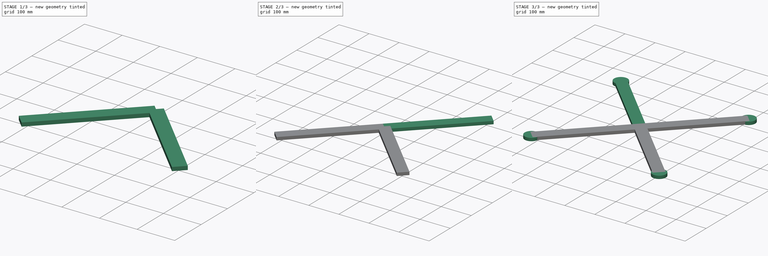
[diagram: build sequence overview — one tinted view per stage of 3, left to right]
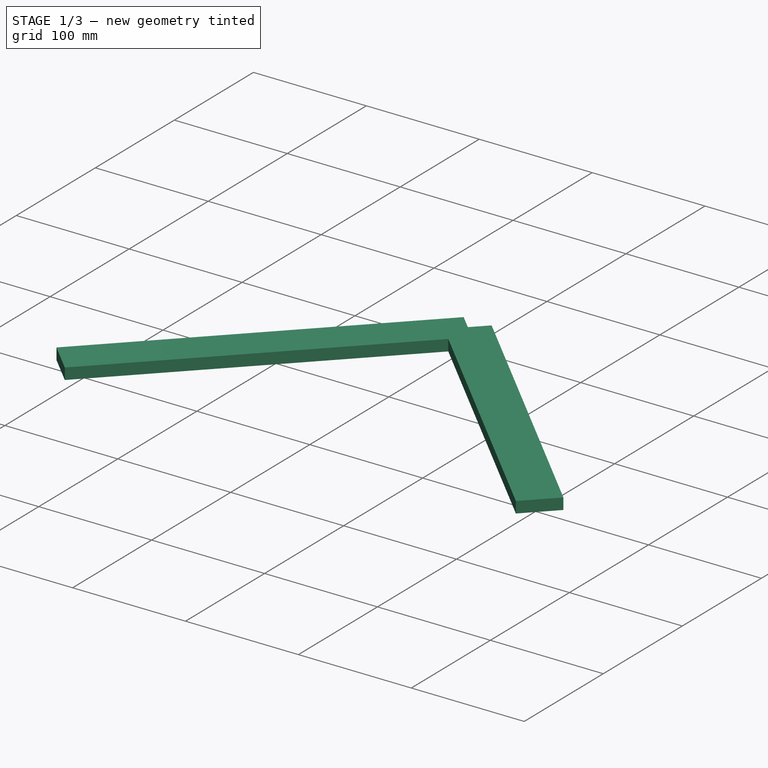
[diagram: stage 1 of 3 — iso view after this stage's code; geometry added in this stage tinted green]
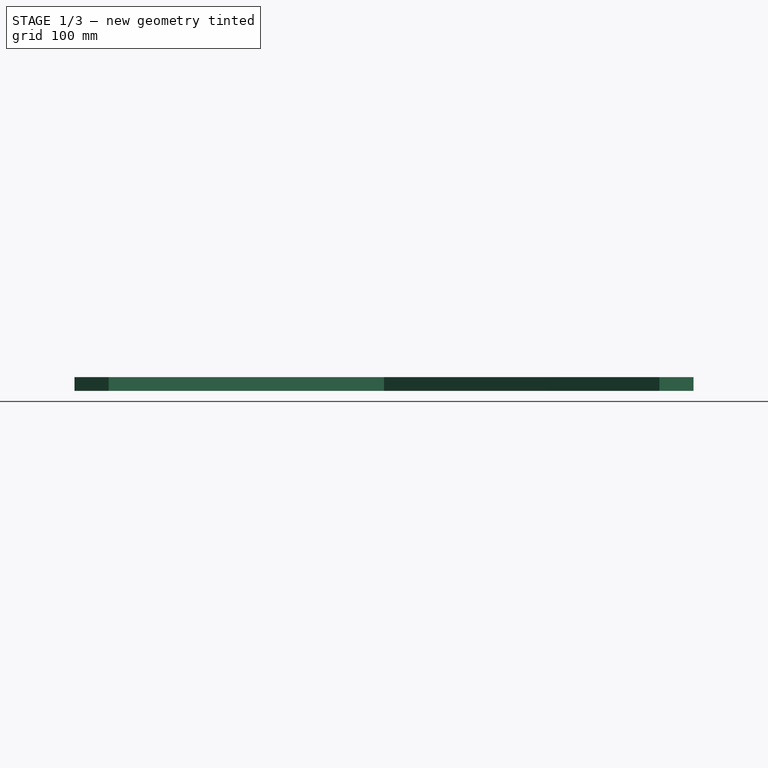
[diagram: stage 1 of 3 — front view after this stage's code; geometry added in this stage tinted green]
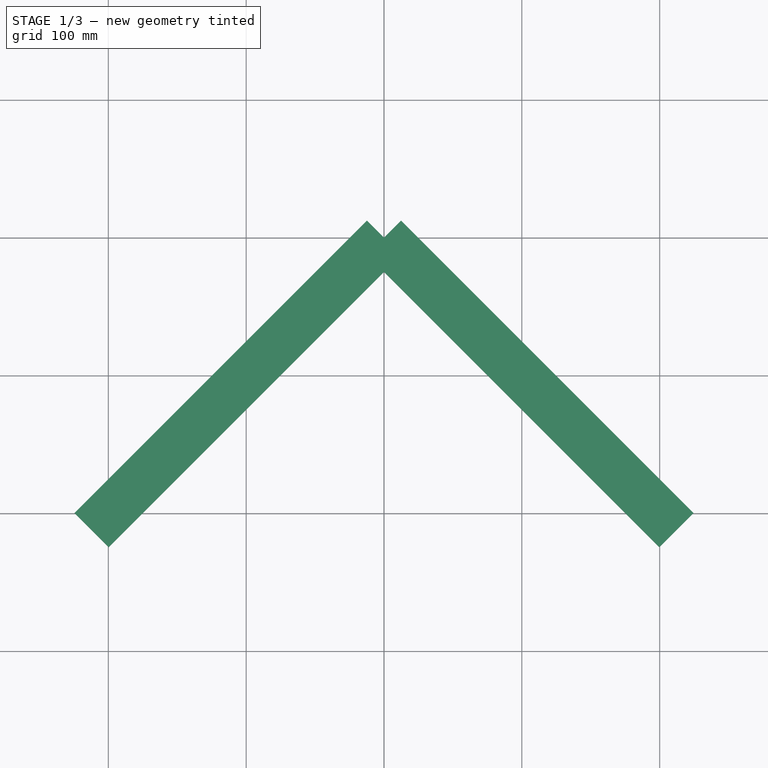
[diagram: stage 1 of 3 — top view after this stage's code; geometry added in this stage tinted green]
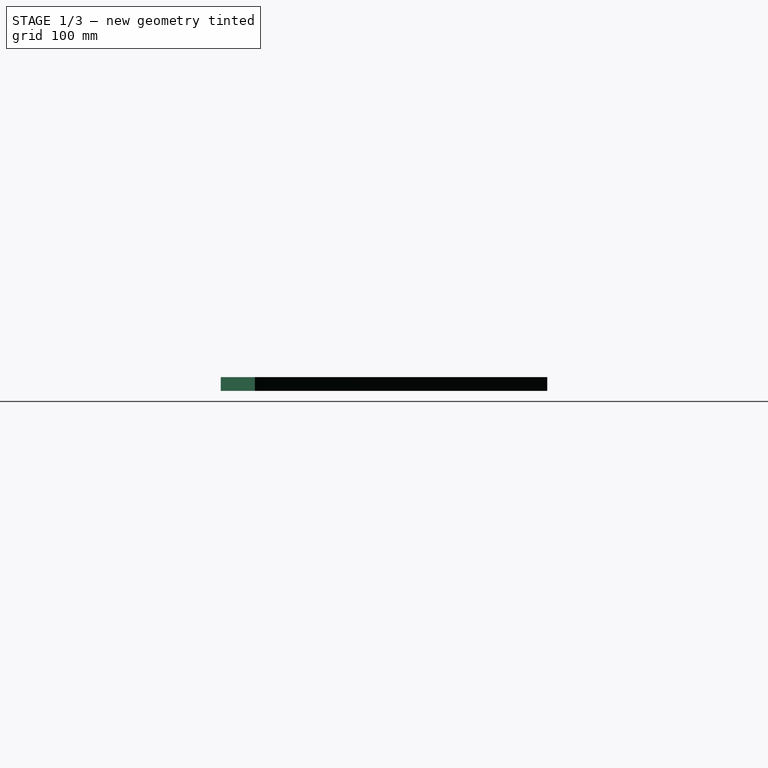
[diagram: stage 1 of 3 — right view after this stage's code; geometry added in this stage tinted green]
FCSTD DOCUMENT  (FreeCAD 0.20R29603 (Git))
Label: final_quadcopter_2
License: All rights reserved
LicenseURL: http://en.wikipedia.org/wiki/All_rights_reserved
objects: Sketcher::SketchObject×9, PartDesign::Pad×5, Spreadsheet::Sheet×1, PartDesign::Body×1
note: 20 computed .brp shape members not serialized (recipe doc carries the construction recipe); baked Part::Feature solids carry a one-line shape summary decoded from their .brp

FEATURE [Sketcher::SketchObject] Sketch  label="top_base"
  FullyConstrained = true
  expr: .Constraints.frame_length = Spreadsheet.A2
  expr: .Constraints.frame_width = Spreadsheet.B2
  sketch-geometry (10):
    g0: ArcOfCircle CenterX=-75 CenterY=75 CenterZ=0 NormalX=0 NormalY=0 NormalZ=1 AngleXU=0 Radius=15 StartAngle=1.5708 EndAngle=3.14159
    g1: LineSegment StartX=-75 StartY=90 StartZ=0 EndX=75 EndY=90 EndZ=0
    g2: ArcOfCircle CenterX=75 CenterY=75 CenterZ=0 NormalX=0 NormalY=0 NormalZ=1 AngleXU=0 Radius=15 StartAngle=2e-16 EndAngle=1.5708
    g3: LineSegment StartX=90 StartY=75 StartZ=0 EndX=90 EndY=-75 EndZ=0
    g4: ArcOfCircle CenterX=75 CenterY=-75 CenterZ=0 NormalX=0 NormalY=0 NormalZ=1 AngleXU=0 Radius=15 StartAngle=4.71239 EndAngle=6.28319
    g5: LineSegment StartX=75 StartY=-90 StartZ=0 EndX=-75 EndY=-90 EndZ=0
    g6: ArcOfCircle CenterX=-75 CenterY=-75 CenterZ=0 NormalX=0 NormalY=0 NormalZ=1 AngleXU=0 Radius=15 StartAngle=3.14159 EndAngle=4.71239
    g7: LineSegment StartX=-90 StartY=-75 StartZ=0 EndX=-90 EndY=75 EndZ=0
    g8: GeomPoint X=-90 Y=90 Z=0
    g9: GeomPoint X=90 Y=-90 Z=0
  constraints (22):
    c: Tangent(g0,g1) = 1.5708
    c: Tangent(g1,g2) = 1.5708
    c: Tangent(g2,g3) = 1.5708
    c: Tangent(g3,g4) = 1.5708
    c: Tangent(g4,g5) = 1.5708
    c: Tangent(g5,g6) = 1.5708
    c: Tangent(g6,g7) = 1.5708
    c: Tangent(g7,g0) = 1.5708
    c: Horizontal(g1)
    c: Horizontal(g5)
    c: Vertical(g3)
    c: Vertical(g7)
    c: Equal(g2,g4)
    c: PointOnObject(g8,g1)
    c: PointOnObject(g8,g7)
    c: PointOnObject(g9,g3)
    c: PointOnObject(g9,g5)
    c: Distance(g7) = 150  'frame_length'
    c: Distance(g1) = 150  'frame_width'
    c: Radius(g2) = 15
    c: Symmetric(g0,g6,g-1)
    c: Symmetric(g0,g2,g-2)
FEATURE [Sketcher::SketchObject] Sketch001  label="arm1"
  FullyConstrained = true
  MapMode = 5
  Placement = pos=(0,0,5) rot=(0,0,1;0rad)
  expr: .Constraints.arm_length = Spreadsheet.C2
  expr: .Constraints.arm_width = Spreadsheet.D2
  sketch-geometry (4):
    g0: LineSegment StartX=12.3744 StartY=-12.3744 StartZ=0 EndX=224.506 EndY=199.758 EndZ=0
    g1: LineSegment StartX=224.506 StartY=199.758 StartZ=0 EndX=199.758 EndY=224.506 EndZ=0
    g2: LineSegment StartX=199.758 StartY=224.506 StartZ=0 EndX=-12.3744 EndY=12.3744 EndZ=0
    g3: LineSegment StartX=-12.3744 StartY=12.3744 StartZ=0 EndX=12.3744 EndY=-12.3744 EndZ=0
  constraints (11):
    c: Coincident(g0,g1)
    c: Coincident(g1,g2)
    c: Coincident(g2,g3)
    c: Coincident(g3,g0)
    c: Equal(g1,g3)
    c: Equal(g2,g0)
    c: Perpendicular(g1,g0)
    c: Distance(g0) = 300  'arm_length'
    c: Distance(g1) = 35  'arm_width'
    c: Angle(g-1,g0) = 0.785398
    c: Symmetric(g2,g0,g-1)
FEATURE [Spreadsheet::Sheet] Spreadsheet
  cells = A1=Frame Length; B1=Frame Width; C1=Arm Length; D1=Arm Width; E1=Motor Outer Diameter; F1=Motor Actual Diameter; G1=Motor Srew Diameter; H1=Screw Distance 1; I1=Screw Distance 2; J1=Drone Frame Hieght; K1=Base Thickness; L1=Battery Length; M1=Bettery Width; N1=Battery Height; O1=Battery Edge Radius; P1=Battery Thickness; Q1=Battery Clearance Height; R1=Guard Height; S1=Rotor Diameter; T1=Guard Radius; U1=Landing Base Diameter; V1=Landing Base Height; W1=Switch Terminal Thickness Radius; X1= Switch Terminal Distance; Y1=Switch Terminal Length; A2=150; B2=150; C2=300; D2=35; E2=45; F2=28; G2=2; H2=16; I2=19; J2=100; K2=5; L2=105; M2=35; N2=30; O2=2; P2=5; Q2=5; R2=20; S2=100; T2=100; U2=10; V2=100; W2=2; X2=15; Y2=10; F3=Motor Clearance Depth; F4=2
FEATURE [Sketcher::SketchObject] Sketch003  label="arm002"
  FullyConstrained = true
  MapMode = 5
  Placement = pos=(0,0,5) rot=(0,0,1;1.5708rad)
  expr: .Constraints.arm_length = Spreadsheet.C2
  expr: .Constraints.arm_width = Spreadsheet.D2
  sketch-geometry (4):
    g0: LineSegment StartX=12.3744 StartY=-12.3744 StartZ=0 EndX=224.506 EndY=199.758 EndZ=0
    g1: LineSegment StartX=224.506 StartY=199.758 StartZ=0 EndX=199.758 EndY=224.506 EndZ=0
    g2: LineSegment StartX=199.758 StartY=224.506 StartZ=0 EndX=-12.3744 EndY=12.3744 EndZ=0
    g3: LineSegment StartX=-12.3744 StartY=12.3744 StartZ=0 EndX=12.3744 EndY=-12.3744 EndZ=0
  constraints (11):
    c: Coincident(g0,g1)
    c: Coincident(g1,g2)
    c: Coincident(g2,g3)
    c: Coincident(g3,g0)
    c: Equal(g1,g3)
    c: Equal(g2,g0)
    c: Perpendicular(g1,g0)
    c: Distance(g0) = 300  'arm_length'
    c: Distance(g1) = 35  'arm_width'
    c: Angle(g-1,g0) = 0.785398
    c: Symmetric(g2,g0,g-1)
FEATURE [Sketcher::SketchObject] Sketch004  label="arm003"
  FullyConstrained = true
  MapMode = 5
  Placement = pos=(0,0,5) rot=(0,0,1;3.14159rad)
  expr: .Constraints.arm_length = Spreadsheet.C2
  expr: .Constraints.arm_width = Spreadsheet.D2
  sketch-geometry (4):
    g0: LineSegment StartX=12.3744 StartY=-12.3744 StartZ=0 EndX=224.506 EndY=199.758 EndZ=0
    g1: LineSegment StartX=224.506 StartY=199.758 StartZ=0 EndX=199.758 EndY=224.506 EndZ=0
    g2: LineSegment StartX=199.758 StartY=224.506 StartZ=0 EndX=-12.3744 EndY=12.3744 EndZ=0
    g3: LineSegment StartX=-12.3744 StartY=12.3744 StartZ=0 EndX=12.3744 EndY=-12.3744 EndZ=0
  constraints (11):
    c: Coincident(g0,g1)
    c: Coincident(g1,g2)
    c: Coincident(g2,g3)
    c: Coincident(g3,g0)
    c: Equal(g1,g3)
    c: Equal(g2,g0)
    c: Perpendicular(g1,g0)
    c: Distance(g0) = 300  'arm_length'
    c: Distance(g1) = 35  'arm_width'
    c: Angle(g-1,g0) = 0.785398
    c: Symmetric(g2,g0,g-1)
FEATURE [Sketcher::SketchObject] Sketch005  label="arm004"
  FullyConstrained = true
  MapMode = 5
  Placement = pos=(0,0,5) rot=(0,0,-1;1.5708rad)
  expr: .Constraints.arm_length = Spreadsheet.C2
  expr: .Constraints.arm_width = Spreadsheet.D2
  sketch-geometry (4):
    g0: LineSegment StartX=12.3744 StartY=-12.3744 StartZ=0 EndX=224.506 EndY=199.758 EndZ=0
    g1: LineSegment StartX=224.506 StartY=199.758 StartZ=0 EndX=199.758 EndY=224.506 EndZ=0
    g2: LineSegment StartX=199.758 StartY=224.506 StartZ=0 EndX=-12.3744 EndY=12.3744 EndZ=0
    g3: LineSegment StartX=-12.3744 StartY=12.3744 StartZ=0 EndX=12.3744 EndY=-12.3744 EndZ=0
  constraints (11):
    c: Coincident(g0,g1)
    c: Coincident(g1,g2)
    c: Coincident(g2,g3)
    c: Coincident(g3,g0)
    c: Equal(g1,g3)
    c: Equal(g2,g0)
    c: Perpendicular(g1,g0)
    c: Distance(g0) = 300  'arm_length'
    c: Distance(g1) = 35  'arm_width'
    c: Angle(g-1,g0) = 0.785398
    c: Symmetric(g2,g0,g-1)
FEATURE [Sketcher::SketchObject] Sketch002  label="outer_motor_base"
  ExternalGeometry = -> [Sketch001,Sketch003,Sketch004,Sketch005]
  FullyConstrained = true
  MapMode = 5
  Placement = pos=(0,0,5) rot=(0,0,1;0rad)
  expr: .Constraints.motor_outer_diameter = Spreadsheet.E2
  sketch-geometry (4):
    g0: Circle CenterX=212.132 CenterY=212.132 CenterZ=0 NormalX=0 NormalY=0 NormalZ=1 AngleXU=0 Radius=22.5
    g1: Circle CenterX=212.132 CenterY=-212.132 CenterZ=0 NormalX=0 NormalY=0 NormalZ=1 AngleXU=0 Radius=22.5
    g2: Circle CenterX=-212.132 CenterY=-212.132 CenterZ=0 NormalX=0 NormalY=0 NormalZ=1 AngleXU=0 Radius=22.5
    g3: Circle CenterX=-212.132 CenterY=212.132 CenterZ=0 NormalX=0 NormalY=0 NormalZ=1 AngleXU=0 Radius=22.5
  constraints (8):
    c: Diameter(g0) = 45  'motor_outer_diameter'
    c: Symmetric(g-3,g-4,g0)
    c: Equal(g0,g3)
    c: Equal(g3,g2)
    c: Equal(g2,g1)
    c: Symmetric(g-10,g-9,g1)
    c: Symmetric(g-7,g-8,g2)
    c: Symmetric(g-5,g-6,g3)
FEATURE [Sketcher::SketchObject] Sketch006  label="screw_holes"
  ExternalGeometry = -> [Sketch002]
  FullyConstrained = true
  MapMode = 5
  Support = -> [XY_Plane]
  expr: Constraints[13] = Spreadsheet.G2
  expr: Constraints[18] = Spreadsheet.H2
  expr: Constraints[19] = Spreadsheet.I2
  expr: Constraints[25] = Spreadsheet.G2
  expr: Constraints[28] = Spreadsheet.I2
  expr: Constraints[29] = Spreadsheet.H2
  expr: Constraints[32] = Spreadsheet.H2
  expr: Constraints[38] = Spreadsheet.I2
  expr: Constraints[39] = Spreadsheet.G2
  expr: Constraints[3] = Spreadsheet.G2
  expr: Constraints[7] = Spreadsheet.H2
  expr: Constraints[9] = Spreadsheet.I2
  sketch-geometry (16):
    g0: Circle CenterX=-220.132 CenterY=212.132 CenterZ=0 NormalX=0 NormalY=0 NormalZ=1 AngleXU=0 Radius=1
    g1: Circle CenterX=-212.132 CenterY=221.632 CenterZ=0 NormalX=0 NormalY=0 NormalZ=1 AngleXU=0 Radius=1
    g2: Circle CenterX=-204.132 CenterY=212.132 CenterZ=0 NormalX=0 NormalY=0 NormalZ=1 AngleXU=0 Radius=1
    g3: Circle CenterX=-212.132 CenterY=202.632 CenterZ=0 NormalX=0 NormalY=0 NormalZ=1 AngleXU=0 Radius=1
    g4: Circle CenterX=212.132 CenterY=221.632 CenterZ=0 NormalX=0 NormalY=0 NormalZ=1 AngleXU=0 Radius=1
    g5: Circle CenterX=220.132 CenterY=212.132 CenterZ=0 NormalX=0 NormalY=0 NormalZ=1 AngleXU=0 Radius=1
    g6: Circle CenterX=204.132 CenterY=212.132 CenterZ=0 NormalX=0 NormalY=0 NormalZ=1 AngleXU=0 Radius=1
    g7: Circle CenterX=212.132 CenterY=202.632 CenterZ=0 NormalX=0 NormalY=0 NormalZ=1 AngleXU=0 Radius=1
    g8: Circle CenterX=-220.132 CenterY=-212.132 CenterZ=0 NormalX=0 NormalY=0 NormalZ=1 AngleXU=0 Radius=1
    g9: Circle CenterX=-212.132 CenterY=-221.632 CenterZ=0 NormalX=0 NormalY=0 NormalZ=1 AngleXU=0 Radius=1
    g10: Circle CenterX=-212.132 CenterY=-202.632 CenterZ=0 NormalX=0 NormalY=0 NormalZ=1 AngleXU=0 Radius=1
    g11: Circle CenterX=-204.132 CenterY=-212.132 CenterZ=0 NormalX=0 NormalY=0 NormalZ=1 AngleXU=0 Radius=1
    g12: Circle CenterX=212.132 CenterY=-204.132 CenterZ=0 NormalX=0 NormalY=0 NormalZ=1 AngleXU=0 Radius=1
    g13: Circle CenterX=221.632 CenterY=-212.132 CenterZ=0 NormalX=0 NormalY=0 NormalZ=1 AngleXU=0 Radius=1
    g14: Circle CenterX=202.632 CenterY=-212.132 CenterZ=0 NormalX=0 NormalY=0 NormalZ=1 AngleXU=0 Radius=1
    g15: Circle CenterX=212.132 CenterY=-220.132 CenterZ=0 NormalX=0 NormalY=0 NormalZ=1 AngleXU=0 Radius=1
  constraints (40):
    c: Equal(g0,g1)
    c: Equal(g1,g2)
    c: Equal(g2,g3)
    c: Diameter(g2) = 2
    c: Symmetric(g3,g1,g-3)
    c: Symmetric(g0,g2,g-3)
    c: Horizontal(g0,g2)
    c: DistanceX(g0,g2) = 16
    c: Vertical(g1,g3)
    c: DistanceY(g3,g1) = 19
    c: Equal(g6,g4)
    c: Equal(g4,g5)
    c: Equal(g5,g7)
    c: Diameter(g5) = 2
    c: Vertical(g7,g4)
    c: Symmetric(g7,g4,g-4)
    c: Horizontal(g5,g6)
    c: Symmetric(g5,g6,g-4)
    c: DistanceX(g6,g5) = 16
    c: DistanceY(g7,g4) = 19
    c: Equal(g8,g10)
    c: Equal(g10,g11)
    c: Equal(g11,g9)
    c: Symmetric(g10,g9,g-6)
    c: Symmetric(g11,g8,g-6)
    c: Diameter(g11) = 2
    c: Vertical(g10,g9)
    c: Horizontal(g11,g8)
    c: DistanceY(g9,g10) = 19
    c: DistanceX(g8,g11) = 16
    c: Symmetric(g12,g15,g-5)
    c: Vertical(g12,g15)
    c: DistanceY(g15,g12) = 16
    c: Equal(g14,g15)
    c: Equal(g15,g12)
    c: Equal(g12,g13)
    c: Symmetric(g14,g13,g-5)
    c: Horizontal(g14,g13)
    c: DistanceX(g14,g13) = 19
    c: Diameter(g15) = 2
FEATURE [PartDesign::Pad] Pad
  Direction = (0,0,1)
  Length = 10
  Length2 = 10
  Placement = pos=(0,0,5) rot=(0,0,-1;1.5708rad)
  Profile = -> Sketch005
  ReferenceAxis = -> Sketch005 [N_Axis]
  Type = 0
FEATURE [PartDesign::Pad] Pad001
  BaseFeature = -> Pad
  Direction = (0,0,1)
  Length = 10
  Length2 = 10
  Placement = pos=(0,0,5) rot=(0,0,-1;1.5708rad)
  Profile = -> Sketch004
  ReferenceAxis = -> Sketch004 [N_Axis]
  Type = 0
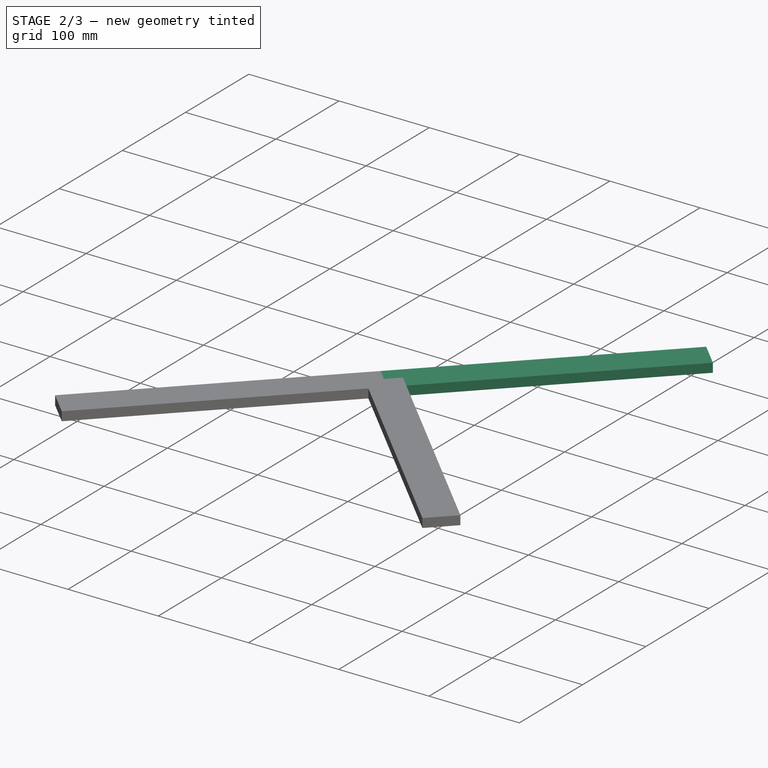
[diagram: stage 2 of 3 — iso view after this stage's code; geometry added in this stage tinted green]
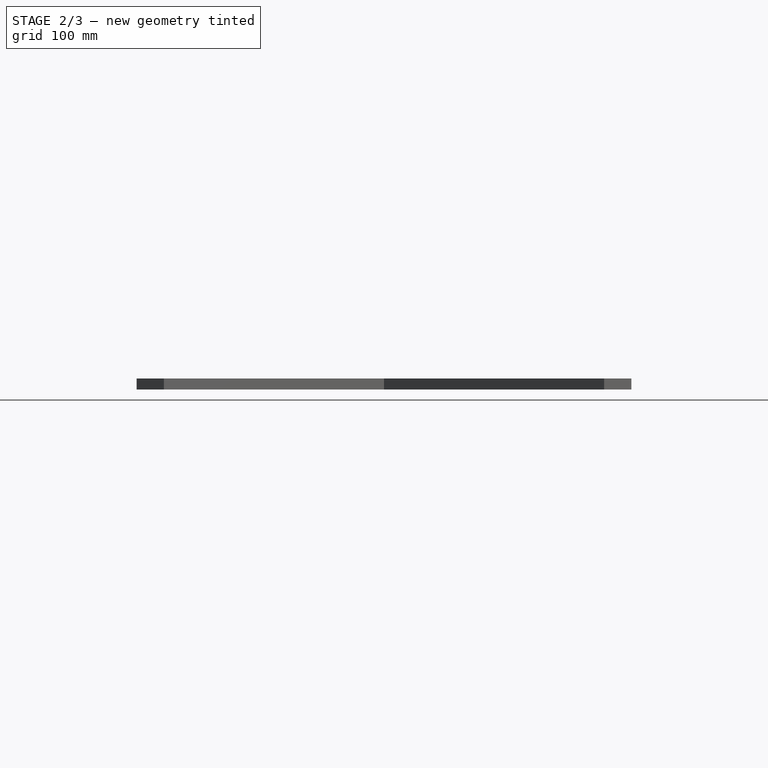
[diagram: stage 2 of 3 — front view after this stage's code; geometry added in this stage tinted green]
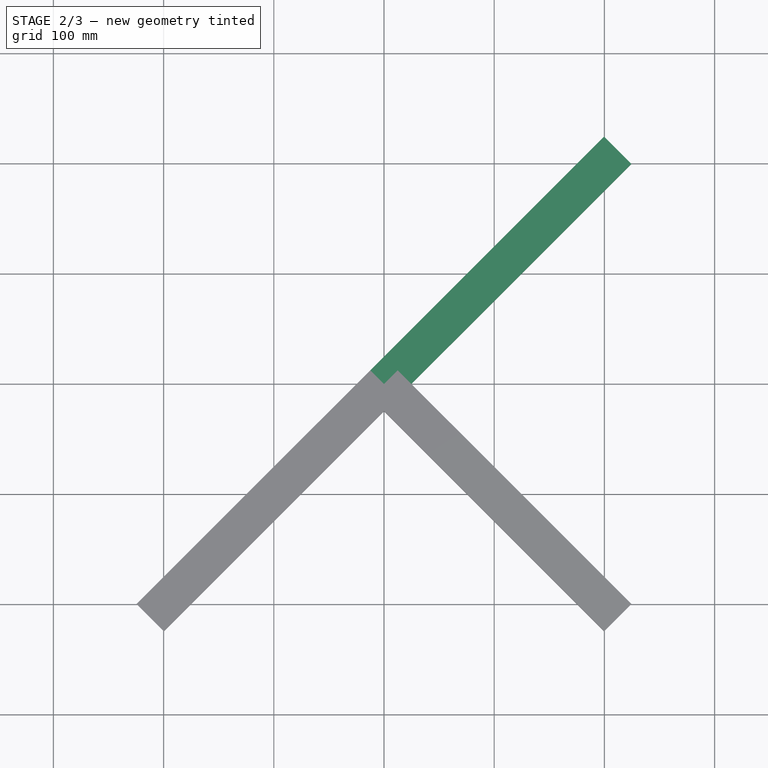
[diagram: stage 2 of 3 — top view after this stage's code; geometry added in this stage tinted green]
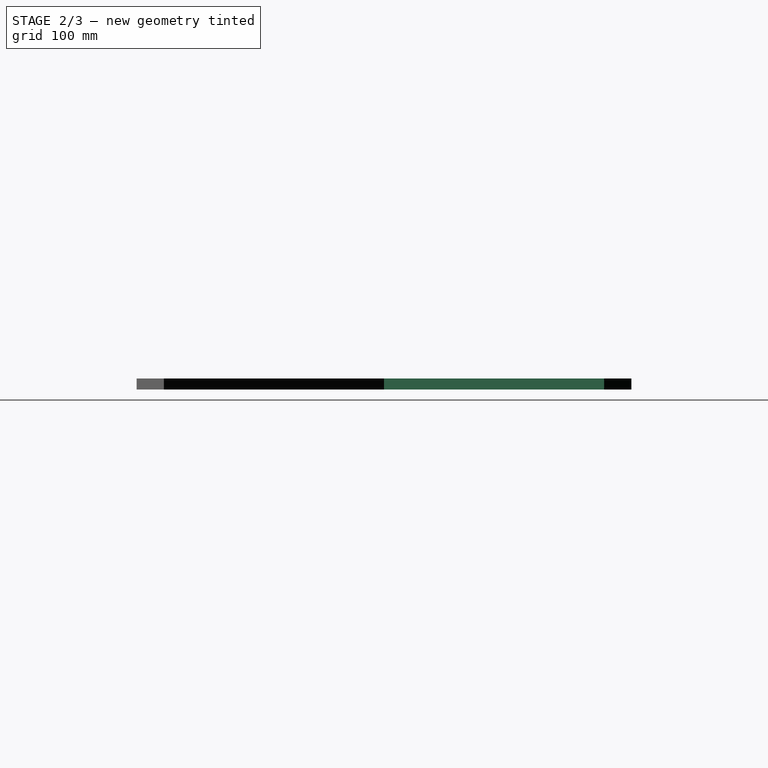
[diagram: stage 2 of 3 — right view after this stage's code; geometry added in this stage tinted green]
FEATURE [PartDesign::Pad] Pad002
  BaseFeature = -> Pad001
  Direction = (0,0,1)
  Length = 10
  Length2 = 10
  Placement = pos=(0,0,5) rot=(0,0,-1;1.5708rad)
  Profile = -> Sketch001
  ReferenceAxis = -> Sketch001 [N_Axis]
  Type = 0
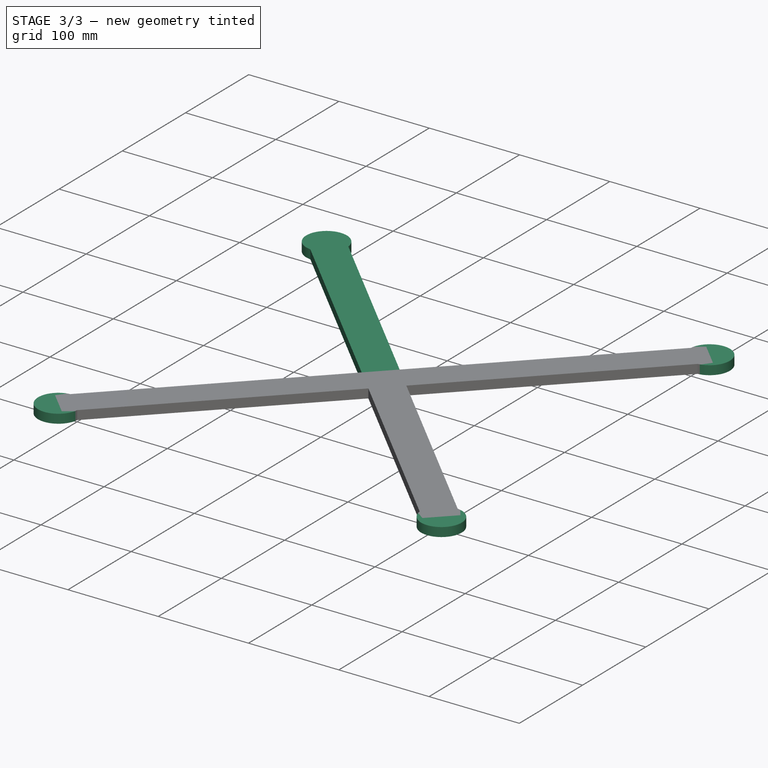
[diagram: stage 3 of 3 — iso view after this stage's code; geometry added in this stage tinted green]
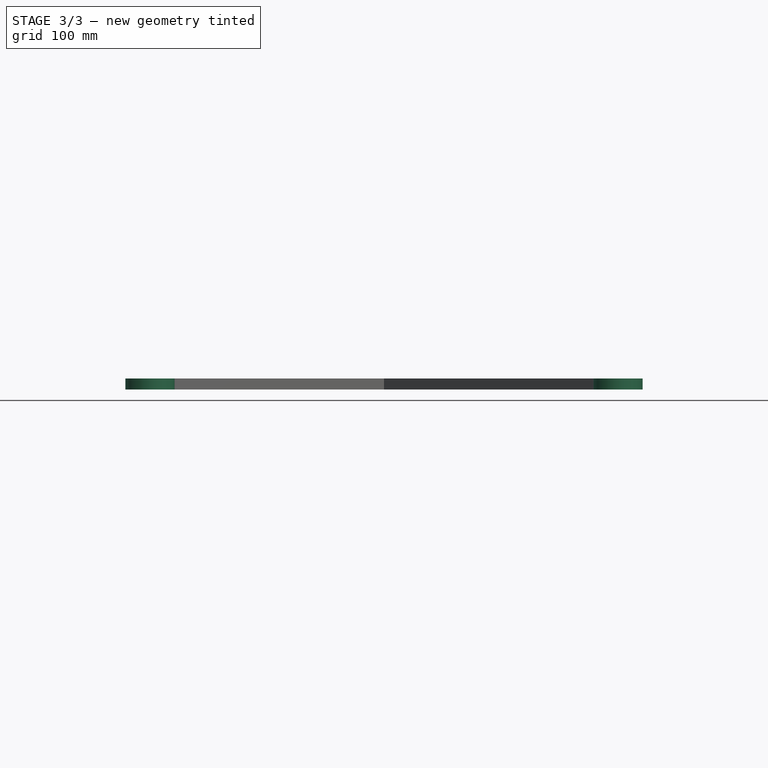
[diagram: stage 3 of 3 — front view after this stage's code; geometry added in this stage tinted green]
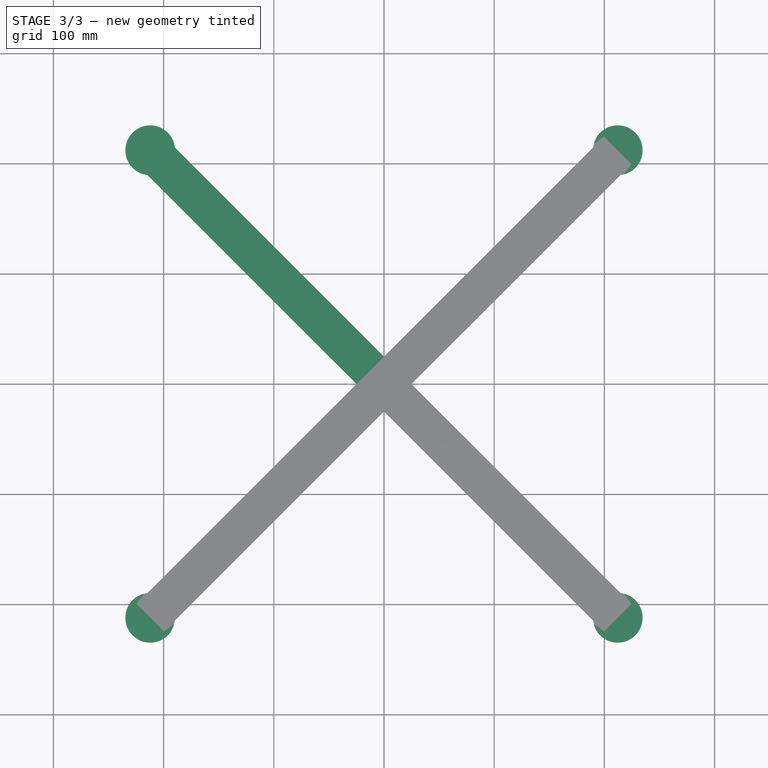
[diagram: stage 3 of 3 — top view after this stage's code; geometry added in this stage tinted green]
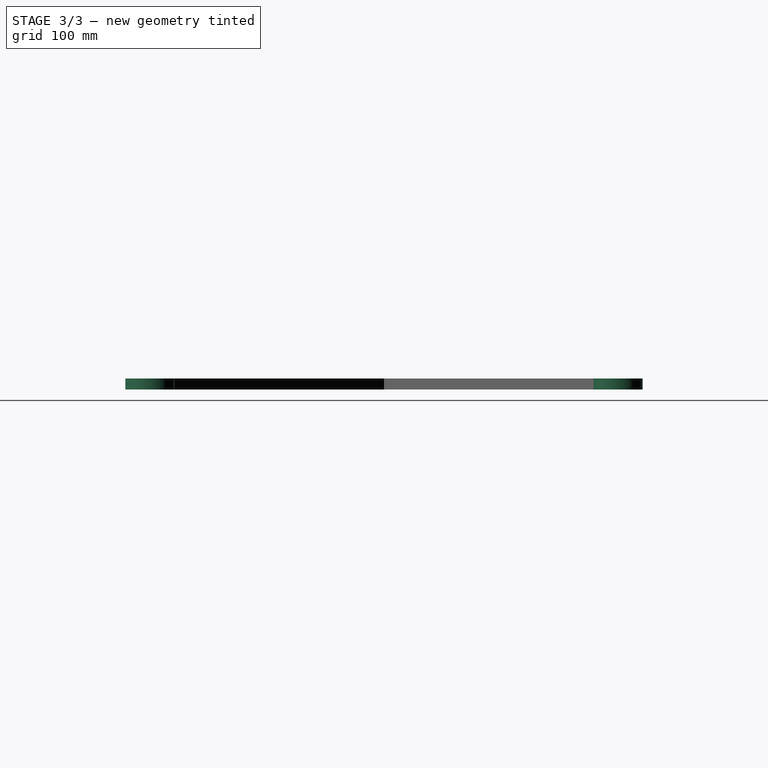
[diagram: stage 3 of 3 — right view after this stage's code; geometry added in this stage tinted green]
FEATURE [PartDesign::Pad] Pad003
  BaseFeature = -> Pad002
  Direction = (0,0,1)
  Length = 10
  Length2 = 10
  Placement = pos=(0,0,5) rot=(0,0,-1;1.5708rad)
  Profile = -> Sketch003
  ReferenceAxis = -> Sketch003 [N_Axis]
  Type = 0
FEATURE [PartDesign::Pad] Pad004
  BaseFeature = -> Pad003
  Direction = (0,0,1)
  Length = 10
  Length2 = 10
  Placement = pos=(0,0,5) rot=(0,0,-1;1.5708rad)
  Profile = -> Sketch002
  ReferenceAxis = -> Sketch002 [N_Axis]
  Type = 0
FEATURE [Sketcher::SketchObject] Sketch007  label="motor_depth"
  ExternalGeometry = -> [Pad004,Sketch002]
  FullyConstrained = true
  MapMode = 5
  Support = -> [XY_Plane]
  expr: Constraints[7] = Spreadsheet.F2
  sketch-geometry (4):
    g0: Circle CenterX=-212.132 CenterY=212.132 CenterZ=0 NormalX=0 NormalY=0 NormalZ=1 AngleXU=0 Radius=14
    g1: Circle CenterX=212.132 CenterY=212.132 CenterZ=0 NormalX=0 NormalY=0 NormalZ=1 AngleXU=0 Radius=14
    g2: Circle CenterX=212.132 CenterY=-212.132 CenterZ=0 NormalX=0 NormalY=0 NormalZ=1 AngleXU=0 Radius=14
    g3: Circle CenterX=-212.132 CenterY=-212.132 CenterZ=0 NormalX=0 NormalY=0 NormalZ=1 AngleXU=0 Radius=14
  constraints (8):
    c: Coincident(g0,g-7)
    c: Coincident(g1,g-5)
    c: Coincident(g2,g-10)
    c: Coincident(g3,g-9)
    c: Equal(g0,g1)
    c: Equal(g1,g2)
    c: Equal(g2,g3)
    c: Diameter(g0) = 28
FEATURE [Sketcher::SketchObject] Sketch008  label="new_screw_holes"
  FullyConstrained = true
  MapMode = 5
  Support = -> [XY_Plane]
FEATURE [PartDesign::Body] Body
  Group = -> [Sketch,Sketch001,Sketch002,Sketch003,Sketch004,Sketch005,Pad,Pad001,Pad002,Pad003,Pad004,Sketch007,Sketch008,Sketch006]
  Origin = -> Origin
  Tip = -> Pad004
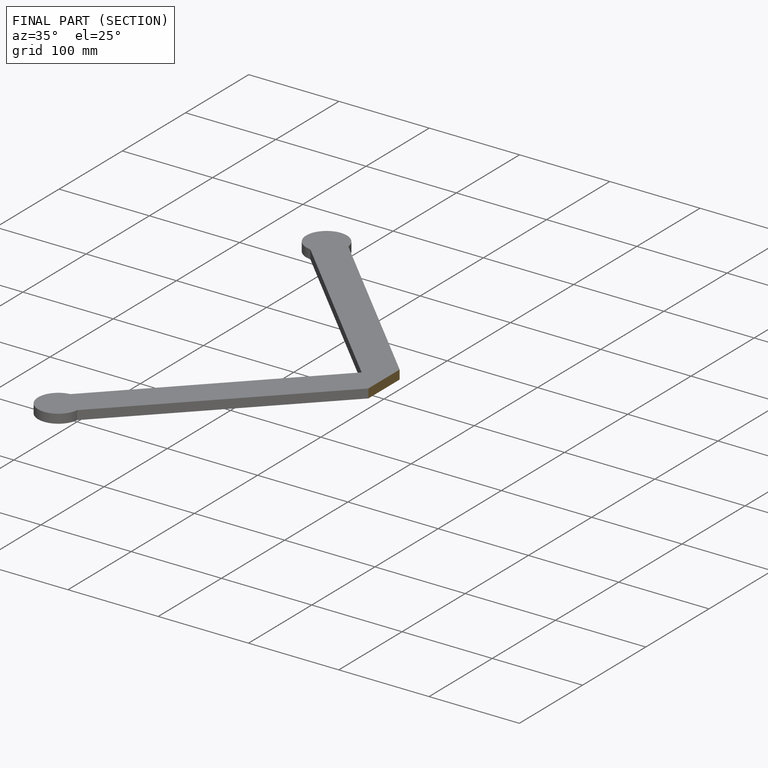
[diagram: finished part — half-section view (interior)]
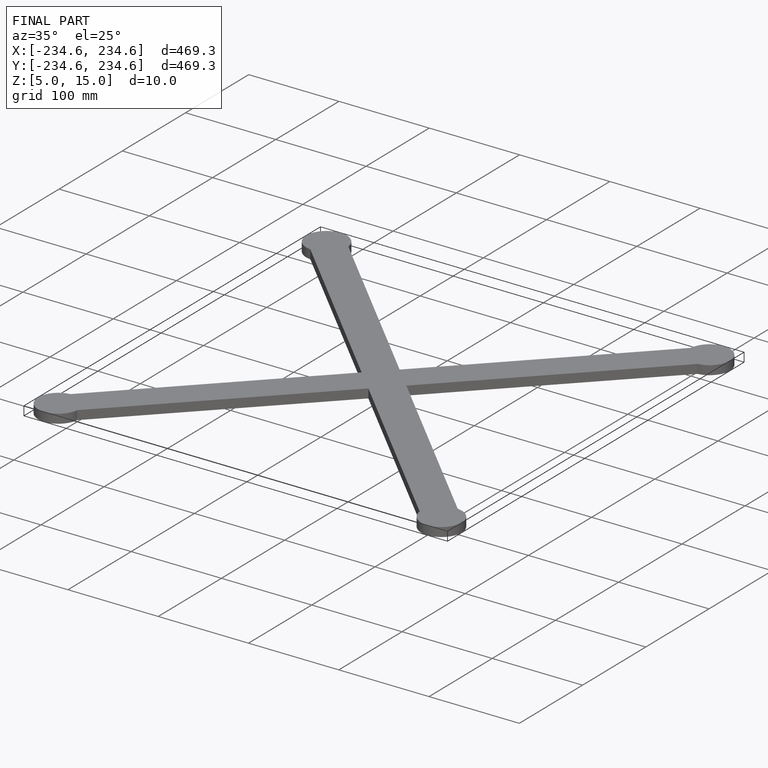
[diagram: finished part — iso view with bounding-box wireframe]
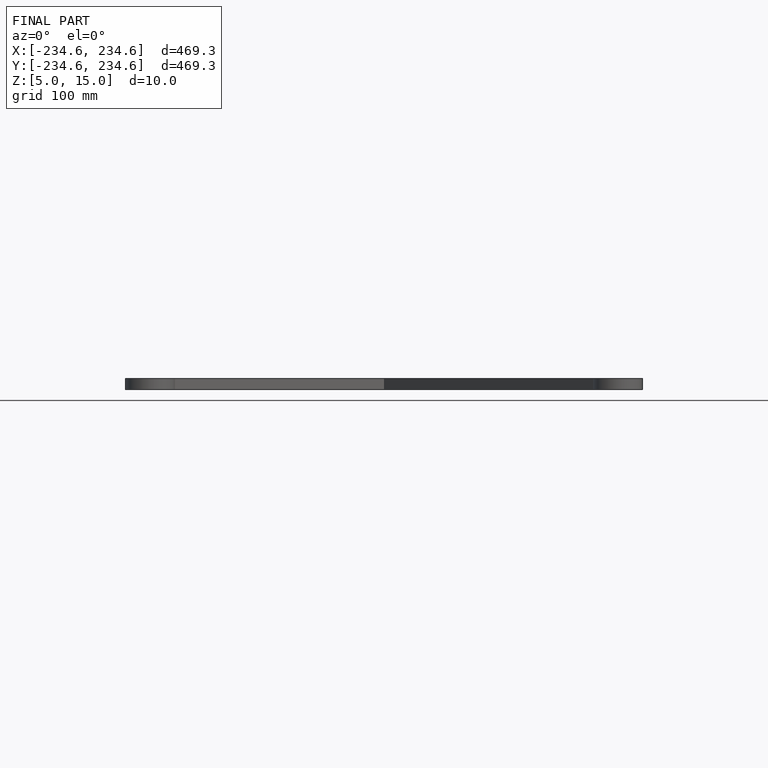
[diagram: finished part — front view with bounding-box wireframe]
